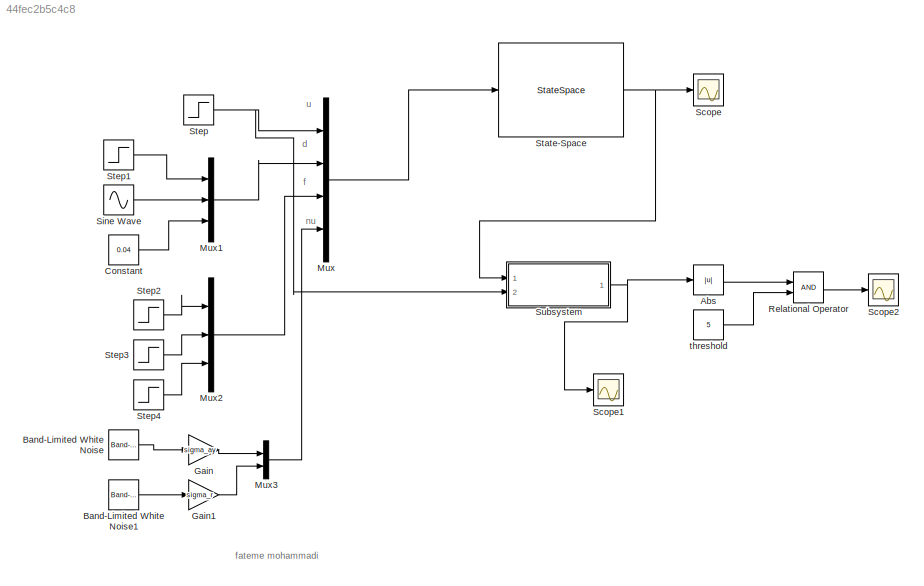
MODEL slx_44fec2b5c4c8
KIND model
CONFIG AbsTol = auto
CONFIG EnableMultiTasking = off
CONFIG FixedStep = auto
CONFIG MaxStep = auto
CONFIG MinStep = auto
CONFIG RelTol = 1e-3
CONFIG SampleTimeConstraint = Unconstrained
CONFIG SolverName = VariableStepAuto
CONFIG StartTime = 0.0
CONFIG StopTime = 10.0
BLOCK [Abs] Abs
  SaturateOnIntegerOverflow = off
BLOCK [Reference] Band-Limited White Noise  REF=simulink/Sources/Band-Limited
White Noise
  Ports = [0, 1]
  SourceBlock = simulink/Sources/Band-Limited\nWhite Noise
  SourceProductBaseCode = SL
  SourceType = Band-Limited White Noise.
BLOCK [Reference] Band-Limited White Noise1  REF=simulink/Sources/Band-Limited
White Noise
  Ports = [0, 1]
  SourceBlock = simulink/Sources/Band-Limited\nWhite Noise
  SourceProductBaseCode = SL
  SourceType = Band-Limited White Noise.
BLOCK [Constant] Constant
  SampleTime = 0.01
  Value = 0.04
BLOCK [Gain] Gain
  Gain = sigma_ay
BLOCK [Gain] Gain1
  Gain = sigma_r
BLOCK [Mux] Mux
  DisplayOption = bar
  Ports = [4, 1]
BLOCK [Mux] Mux1
  DisplayOption = bar
  Inputs = 3
  Ports = [3, 1]
BLOCK [Mux] Mux2
  DisplayOption = bar
  Inputs = 3
  Ports = [3, 1]
BLOCK [Mux] Mux3
  DisplayOption = bar
  Inputs = 2
  Ports = [2, 1]
BLOCK [RelationalOperator] Relational Operator
  InputSameDT = off
  OutDataTypeStr = boolean
  Ports = [2, 1]
  RndMeth = Simplest
BLOCK [Scope] Scope
  Floating = off
  NumInputPorts = 1
  Ports = [1]
  ScopeSpecificationString = Simulink.scopes.TimeScopeBlockCfg('CurrentConfiguration', extmgr.ConfigurationSet(extmgr.Configuration('Core','General UI',true,'FigureColor',[1 1 1]),extmgr.Configuration('Core','Source UI',true),extmgr.Configuration('Sources','WiredSimulink',true),extmgr.Configuration('Visuals','Time Domain',true,'SerializedDisplays',{struct('MinYLimReal','-48.51299','MaxYLimReal','427.01384','YLabelReal','','Mi...<+1576ch>
BLOCK [Scope] Scope1
  Floating = off
  NumInputPorts = 1
  Ports = [1]
  ScopeSpecificationString = Simulink.scopes.TimeScopeBlockCfg('CurrentConfiguration', extmgr.ConfigurationSet(extmgr.Configuration('Core','General UI',true,'FigureColor',[1 1 1]),extmgr.Configuration('Core','Source UI',true),extmgr.Configuration('Sources','WiredSimulink',true,'DataLoggingVariableName','ScopeData1'),extmgr.Configuration('Visuals','Time Domain',true,'SerializedDisplays',{struct('MinYLimReal','-7.415','MaxYLimR...<+1507ch>
BLOCK [Scope] Scope2
  Floating = off
  NumInputPorts = 1
  Ports = [1]
  ScopeSpecificationString = Simulink.scopes.TimeScopeBlockCfg('CurrentConfiguration', extmgr.ConfigurationSet(extmgr.Configuration('Core','General UI',true,'FigureColor',[1 1 1]),extmgr.Configuration('Core','Source UI',true),extmgr.Configuration('Sources','WiredSimulink',true,'DataLoggingVariableName','ScopeData2'),extmgr.Configuration('Visuals','Time Domain',true,'SerializedDisplays',{struct('MinYLimReal','-0.125','MaxYLimR...<+1640ch>
BLOCK [Sin] Sine Wave
  Amplitude = 0.03
  Frequency = 0.5
  Ports = [0, 1]
  SampleTime = 0.01
BLOCK [StateSpace] State-Space
  A = A
  B = BB
  C = C
  D = DD
  InitialCondition = 0
  Ports = [1, 1]
BLOCK [Step] Step
  SampleTime = 0.01
BLOCK [Step] Step1
  After = 0.05
  SampleTime = 0.01
  Time = 3
BLOCK [Step] Step2
  SampleTime = 0.01
  Time = 3
BLOCK [Step] Step3
  After = 0.5
  SampleTime = 0.01
  Time = 5
BLOCK [Step] Step4
  After = 0.8
  SampleTime = 0.01
  Time = 7
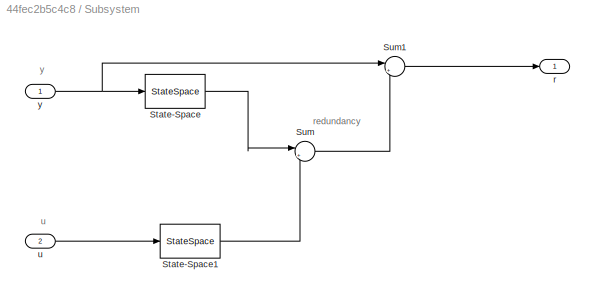
BLOCK [SubSystem] Subsystem
  Ports = [2, 1]
  RequestExecContextInheritance = off
BLOCK [StateSpace] Subsystem/State-Space
  A = A-L*C
  B = L
  C = C
  D = zeros(2)
  InitialCondition = 0
  Ports = [1, 1]
BLOCK [StateSpace] Subsystem/State-Space1
  A = A-L*C
  B = B-L*D
  C = C
  D = D
  InitialCondition = 0
  Ports = [1, 1]
BLOCK [Sum] Subsystem/Sum
  Inputs = |++
  Ports = [2, 1]
BLOCK [Sum] Subsystem/Sum1
  Inputs = |+-
  Ports = [2, 1]
BLOCK [Outport] Subsystem/r
BLOCK [Inport] Subsystem/u
  Port = 2
BLOCK [Inport] Subsystem/y
BLOCK [Constant] threshold
  Value = 5
ANNOTATION (root): fateme mohammadi
ANNOTATION (root): d
ANNOTATION (root): f
ANNOTATION (root): nu
ANNOTATION (root): u
ANNOTATION Subsystem: redundancy
ANNOTATION Subsystem: u
ANNOTATION Subsystem: y
LINE Abs:1 -> Relational Operator:1
LINE Band-Limited White Noise1:1 -> Gain1:1
LINE Band-Limited White Noise:1 -> Gain:1
LINE Constant:1 -> Mux1:3
LINE Gain1:1 -> Mux3:2
LINE Gain:1 -> Mux3:1
LINE Mux1:1 -> Mux:2
LINE Mux2:1 -> Mux:3
LINE Mux3:1 -> Mux:4
LINE Mux:1 -> State-Space:1
LINE Relational Operator:1 -> Scope2:1
LINE Sine Wave:1 -> Mux1:2
NET State-Space:1 -> Scope:1, Subsystem:1
LINE Step1:1 -> Mux1:1
LINE Step2:1 -> Mux2:1
LINE Step3:1 -> Mux2:2
LINE Step4:1 -> Mux2:3
NET Step:1 -> Mux:1, Subsystem:2
LINE Subsystem/State-Space1:1 -> Subsystem/Sum:2
LINE Subsystem/State-Space:1 -> Subsystem/Sum:1
LINE Subsystem/Sum1:1 -> Subsystem/r:1
LINE Subsystem/Sum:1 -> Subsystem/Sum1:2
LINE Subsystem/u:1 -> Subsystem/State-Space1:1
NET Subsystem/y:1 -> Subsystem/State-Space:1, Subsystem/Sum1:1
NET Subsystem:1 -> Abs:1, Scope1:1
LINE threshold:1 -> Relational Operator:2
note: NET lines group one-source signal fan-out (src -> all destinations, sorted); 1:1 wires keep LINE
